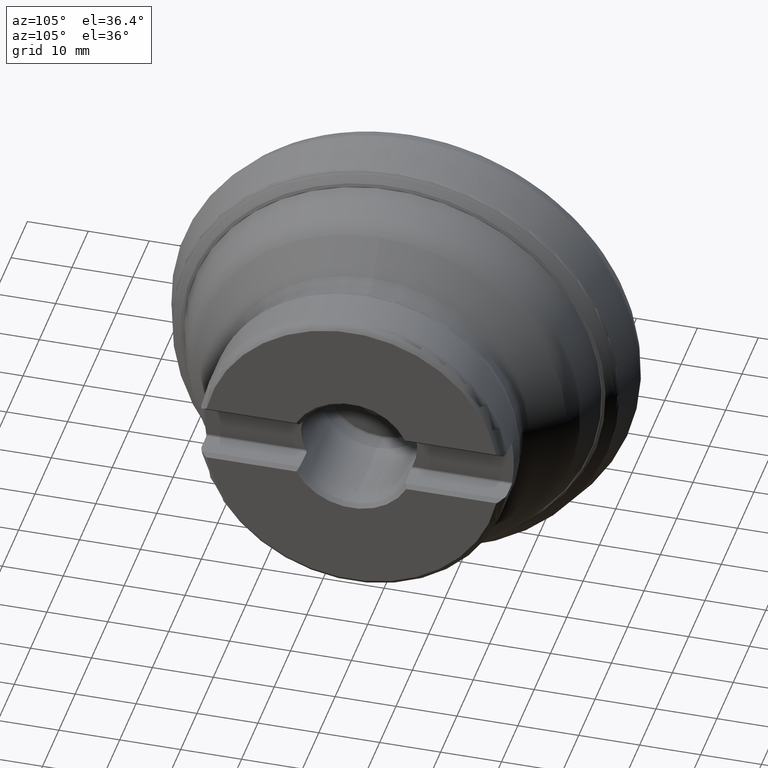
[diagram: clean part render]
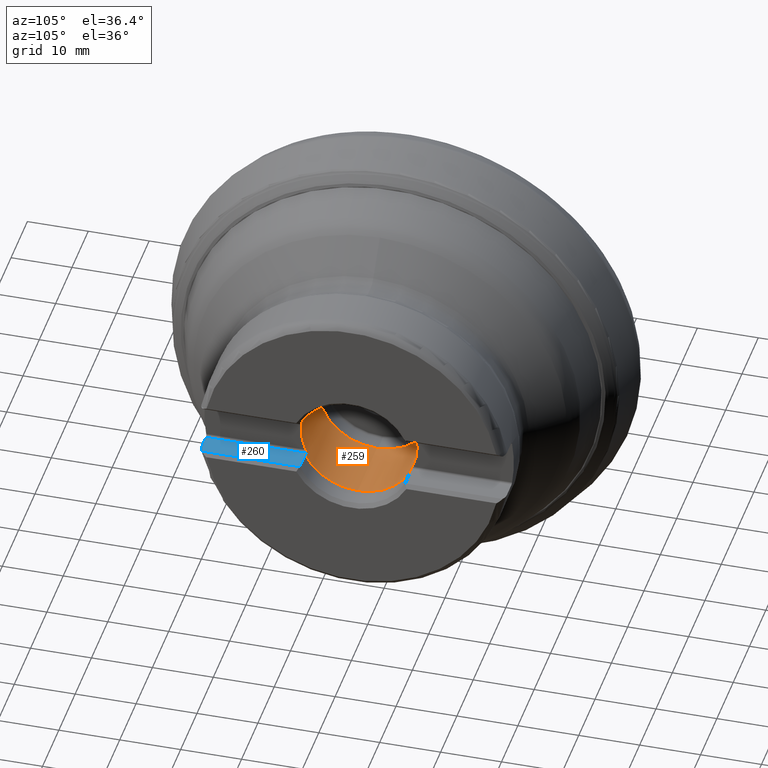
[diagram: same view with the hole feature highlighted: cylindrical wall and planar end face, labeled with their STEP entity ids]
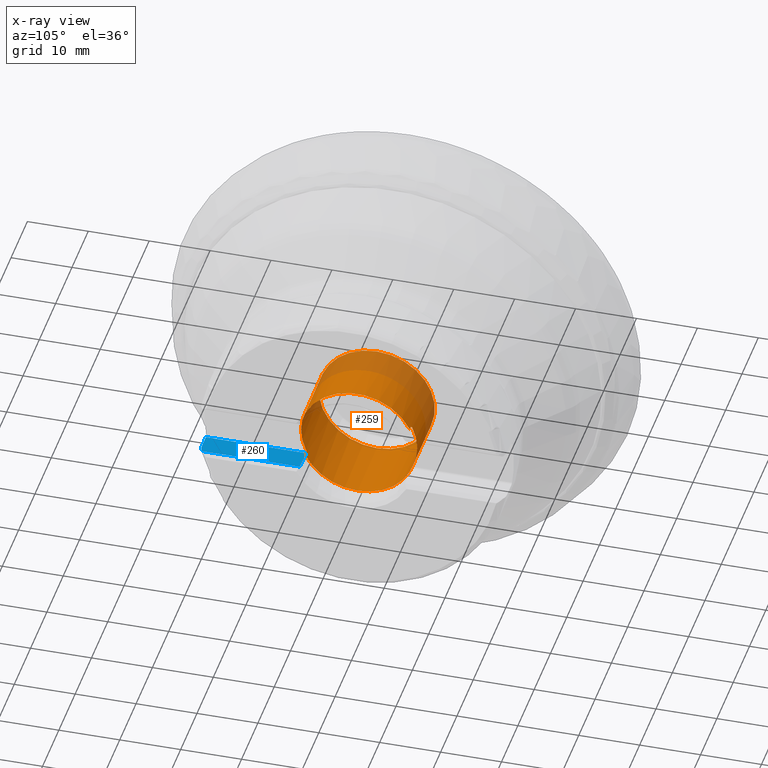
[diagram: x-ray of the same camera — body ghosted, the hole faces saturated]
A machine part, auxiliary view. The highlighted faces form one hole feature of diameter 19.05 mm: the cylindrical wall (entity #259, orange) and its adjacent planar end face (entity #260, blue) — they share a circular edge in the B-rep.
The next image is the same camera in x-ray (body ghosted, the hole faces saturated) — the bore reads through the body.
Wall:
#105=CYLINDRICAL_SURFACE('',#1125,9.525);
#182=LINE('',#1766,#206);
#183=LINE('',#1807,#207);
#184=LINE('',#1808,#208);
#185=LINE('',#1849,#209);
#206=VECTOR('',#1313,1.);
#207=VECTOR('',#1316,1.);
#208=VECTOR('',#1317,1.);
#209=VECTOR('',#1320,1.);
#259=ADVANCED_FACE('',(#443,#444),#105,.F.);
#373=B_SPLINE_CURVE_WITH_KNOTS('',3,(#1768,#1769,#1770,#1771,#1772,#1773,
#1774,#1775,#1776,#1777,#1778,#1779,#1780,#1781,#1782,#1783,#1784,#1785,
#1786),.UNSPECIFIED.,.F.,.F.,(4,3,3,3,3,3,4),(0.,0.0386594743957455,0.269044895788534,
0.480081106362778,0.673449817538788,0.857853975453466,1.),.UNSPECIFIED.);
#374=B_SPLINE_CURVE_WITH_KNOTS('',3,(#1790,#1791,#1792,#1793,#1794,#1795,
#1796,#1797,#1798,#1799,#1800,#1801,#1802,#1803,#1804,#1805),
 .UNSPECIFIED.,.F.,.F.,(4,3,3,3,3,4),(0.,0.108413031410189,0.323007237368325,
0.558707803919922,0.801825649246487,1.),.UNSPECIFIED.);
#375=B_SPLINE_CURVE_WITH_KNOTS('',3,(#1810,#1811,#1812,#1813,#1814,#1815,
#1816,#1817,#1818,#1819,#1820,#1821,#1822,#1823,#1824,#1825),
 .UNSPECIFIED.,.F.,.F.,(4,3,3,3,3,4),(0.,0.206937369334465,0.423509286042871,
0.620977371917134,0.81021090692837,1.),.UNSPECIFIED.);
#376=B_SPLINE_CURVE_WITH_KNOTS('',3,(#1829,#1830,#1831,#1832,#1833,#1834,
#1835,#1836,#1837,#1838,#1839,#1840,#1841,#1842,#1843,#1844,#1845,#1846,
#1847),.UNSPECIFIED.,.F.,.F.,(4,3,3,3,3,3,4),(0.,0.0466914832213066,0.253760914020809,
0.483837973279794,0.726357143929705,0.965681344552278,1.),.UNSPECIFIED.);
#443=FACE_BOUND('',#541,.T.);
#444=FACE_BOUND('',#542,.T.);
#541=EDGE_LOOP('',(#683));
#542=EDGE_LOOP('',(#684,#685,#686,#687,#688,#689,#690,#691,#692,#693,#694,
#695));
#683=ORIENTED_EDGE('',*,*,#953,.F.);
#684=ORIENTED_EDGE('',*,*,#957,.T.);
#685=ORIENTED_EDGE('',*,*,#961,.T.);
#686=ORIENTED_EDGE('',*,*,#962,.F.);
#687=ORIENTED_EDGE('',*,*,#963,.T.);
#688=ORIENTED_EDGE('',*,*,#964,.F.);
#689=ORIENTED_EDGE('',*,*,#965,.T.);
#690=ORIENTED_EDGE('',*,*,#960,.T.);
#691=ORIENTED_EDGE('',*,*,#966,.T.);
#692=ORIENTED_EDGE('',*,*,#967,.F.);
#693=ORIENTED_EDGE('',*,*,#968,.T.);
#694=ORIENTED_EDGE('',*,*,#969,.F.);
#695=ORIENTED_EDGE('',*,*,#970,.T.);
#860=VERTEX_POINT('',#1723);
#862=VERTEX_POINT('',#1737);
#863=VERTEX_POINT('',#1745);
#864=VERTEX_POINT('',#1755);
#865=VERTEX_POINT('',#1763);
#866=VERTEX_POINT('',#1767);
#867=VERTEX_POINT('',#1787);
#868=VERTEX_POINT('',#1789);
#869=VERTEX_POINT('',#1806);
#870=VERTEX_POINT('',#1809);
#871=VERTEX_POINT('',#1826);
#872=VERTEX_POINT('',#1828);
#873=VERTEX_POINT('',#1848);
#953=EDGE_CURVE('',#860,#860,#1044,.T.);
#957=EDGE_CURVE('',#862,#863,#1046,.T.);
#960=EDGE_CURVE('',#864,#865,#1047,.T.);
#961=EDGE_CURVE('',#863,#866,#182,.T.);
#962=EDGE_CURVE('',#867,#866,#373,.T.);
#963=EDGE_CURVE('',#867,#868,#1048,.T.);
#964=EDGE_CURVE('',#869,#868,#374,.T.);
#965=EDGE_CURVE('',#869,#864,#183,.T.);
#966=EDGE_CURVE('',#865,#870,#184,.T.);
#967=EDGE_CURVE('',#871,#870,#375,.T.);
#968=EDGE_CURVE('',#871,#872,#1049,.T.);
#969=EDGE_CURVE('',#873,#872,#376,.T.);
#970=EDGE_CURVE('',#873,#862,#185,.T.);
#1044=CIRCLE('',#1113,9.525);
#1046=CIRCLE('',#1119,9.525);
#1047=CIRCLE('',#1121,9.525);
#1048=CIRCLE('',#1123,9.525);
#1049=CIRCLE('',#1124,9.525);
#1113=AXIS2_PLACEMENT_3D('',#1722,#1293,#1294);
#1119=AXIS2_PLACEMENT_3D('',#1746,#1305,#1306);
#1121=AXIS2_PLACEMENT_3D('',#1764,#1309,#1310);
#1123=AXIS2_PLACEMENT_3D('',#1788,#1314,#1315);
#1124=AXIS2_PLACEMENT_3D('',#1827,#1318,#1319);
#1125=AXIS2_PLACEMENT_3D('',#1850,#1321,#1322);
#1293=DIRECTION('',(1.,1.47104550762833E-15,0.));
#1294=DIRECTION('',(0.,0.,-1.));
#1305=DIRECTION('',(1.,1.47104550762833E-15,0.));
#1306=DIRECTION('',(0.,0.,-1.));
#1309=DIRECTION('',(1.,1.47104550762833E-15,0.));
#1310=DIRECTION('',(0.,0.,-1.));
#1313=DIRECTION('',(-1.,-1.47104550762833E-15,0.));
#1314=DIRECTION('',(1.,1.47104550762833E-15,0.));
#1315=DIRECTION('',(0.,0.,1.));
#1316=DIRECTION('',(1.,1.47104550762833E-15,0.));
#1317=DIRECTION('',(-1.,-1.47104550762833E-15,0.));
#1318=DIRECTION('',(1.,1.47104550762833E-15,0.));
#1319=DIRECTION('',(0.,0.,1.));
#1320=DIRECTION('',(1.,1.47104550762833E-15,0.));
#1321=DIRECTION('',(-1.,-1.47104550762833E-15,0.));
#1322=DIRECTION('',(0.,0.,-1.));
#1722=CARTESIAN_POINT('',(24.45,-2.28747576436206E-14,0.));
#1723=CARTESIAN_POINT('',(24.45,-2.28747576436206E-14,-9.525));
#1737=CARTESIAN_POINT('',(36.2,-8.56124990874581,-4.175));
#1745=CARTESIAN_POINT('',(36.2,8.5612499087458,-4.175));
#1746=CARTESIAN_POINT('',(36.2,-5.58997292898766E-15,0.));
#1755=CARTESIAN_POINT('',(36.2,8.5612499087458,4.175));
#1763=CARTESIAN_POINT('',(36.2,-8.56124990874581,4.175));
#1764=CARTESIAN_POINT('',(36.2,-5.58997292898766E-15,0.));
#1766=CARTESIAN_POINT('',(40.2,8.5612499087458,-4.175));
#1767=CARTESIAN_POINT('',(35.65,8.5612499087458,-4.175));
#1768=CARTESIAN_POINT('',(35.25,8.74499857061165,-3.775));
#1769=CARTESIAN_POINT('',(35.25,8.74161773161384,-3.78283190257042));
#1770=CARTESIAN_POINT('',(35.2502301556307,8.73822513158494,-3.79066209357218));
#1771=CARTESIAN_POINT('',(35.250689353177,8.7348282023674,-3.79847354540307));
#1772=CARTESIAN_POINT('',(35.2534023956065,8.71475838019074,-3.84462536051241));
#1773=CARTESIAN_POINT('',(35.2643109342927,8.69422372993681,-3.89079669083708));
#1774=CARTESIAN_POINT('',(35.2827498272641,8.67485314955539,-3.93351596331436));
#1775=CARTESIAN_POINT('',(35.2996629652033,8.65708541813785,-3.97270036278937));
#1776=CARTESIAN_POINT('',(35.3233156854881,8.63988011341599,-4.00991051466906));
#1777=CARTESIAN_POINT('',(35.3524953671563,8.62466260945896,-4.04237799729324));
#1778=CARTESIAN_POINT('',(35.3792506855096,8.61070943589313,-4.07214795310071));
#1779=CARTESIAN_POINT('',(35.4112783314609,8.59812510101882,-4.098586147957));
#1780=CARTESIAN_POINT('',(35.4467483665104,8.58808726251802,-4.11951237058169));
#1781=CARTESIAN_POINT('',(35.4805643378047,8.57851751559993,-4.13946274679605));
#1782=CARTESIAN_POINT('',(35.5183282752096,8.57106009559079,-4.15483582076001));
#1783=CARTESIAN_POINT('',(35.5573956245222,8.56654084343706,-4.16413292027579));
#1784=CARTESIAN_POINT('',(35.5874898726738,8.56305958611689,-4.1712946352332));
#1785=CARTESIAN_POINT('',(35.6188700612677,8.5612499087458,-4.175));
#1786=CARTESIAN_POINT('',(35.65,8.5612499087458,-4.175));
#1787=CARTESIAN_POINT('',(35.25,8.74499857061165,-3.775));
#1788=CARTESIAN_POINT('',(35.25,-6.98746616123458E-15,0.));
#1789=CARTESIAN_POINT('',(35.25,8.74499857061165,3.775));
#1790=CARTESIAN_POINT('',(35.65,8.5612499087458,4.175));
#1791=CARTESIAN_POINT('',(35.6259936956598,8.5612499087458,4.175));
#1792=CARTESIAN_POINT('',(35.6018703742219,8.56231721657189,4.17281338993157));
#1793=CARTESIAN_POINT('',(35.5783417054865,8.56440253709577,4.16852901904106));
#1794=CARTESIAN_POINT('',(35.5323799205614,8.56847608050346,4.16015976808072));
#1795=CARTESIAN_POINT('',(35.4875736915034,8.57664126790243,4.14336818386916));
#1796=CARTESIAN_POINT('',(35.4482191694663,8.58767300449022,4.1203758770226));
#1797=CARTESIAN_POINT('',(35.4050301642006,8.59977961142934,4.09514332914589));
#1798=CARTESIAN_POINT('',(35.3668454300065,8.61571094335503,4.06163691019243));
#1799=CARTESIAN_POINT('',(35.3367773091044,8.63335500147312,4.02378011558024));
#1800=CARTESIAN_POINT('',(35.305730447902,8.65157338715885,3.98469105338978));
#1801=CARTESIAN_POINT('',(35.2822348974642,8.67218409589315,3.93972891098112));
#1802=CARTESIAN_POINT('',(35.2678166150486,8.69308833455976,3.89305024467202));
#1803=CARTESIAN_POINT('',(35.2560422841187,8.71015925998665,3.85493127539035));
#1804=CARTESIAN_POINT('',(35.25,8.72780011334711,3.81484118786626));
#1805=CARTESIAN_POINT('',(35.25,8.74499857061165,3.775));
#1806=CARTESIAN_POINT('',(35.65,8.5612499087458,4.175));
#1807=CARTESIAN_POINT('',(40.2,8.5612499087458,4.175));
#1808=CARTESIAN_POINT('',(40.2,-8.5612499087458,4.175));
#1809=CARTESIAN_POINT('',(35.65,-8.56124990874581,4.175));
#1810=CARTESIAN_POINT('',(35.25,-8.74499857061167,3.775));
#1811=CARTESIAN_POINT('',(35.25,-8.7270561519053,3.81656461614319));
#1812=CARTESIAN_POINT('',(35.2565850754852,-8.70862364477201,3.85841738595405));
#1813=CARTESIAN_POINT('',(35.2693927758912,-8.69085331574531,3.89803715274737));
#1814=CARTESIAN_POINT('',(35.282813946652,-8.67223181361915,3.93955464915791));
#1815=CARTESIAN_POINT('',(35.3034034130693,-8.65391245161984,3.97956810047001));
#1816=CARTESIAN_POINT('',(35.3300980585041,-8.63738100061534,4.01513068905724));
#1817=CARTESIAN_POINT('',(35.3544605109498,-8.62229382929698,4.04758633172248));
#1818=CARTESIAN_POINT('',(35.3844780066998,-8.60836386357537,4.07705931876258));
#1819=CARTESIAN_POINT('',(35.418513637287,-8.59684172875103,4.10121168568572));
#1820=CARTESIAN_POINT('',(35.4511144040829,-8.585805340592,4.12434584444943));
#1821=CARTESIAN_POINT('',(35.4882060452832,-8.57673929736884,4.14311039443198));
#1822=CARTESIAN_POINT('',(35.5272455852362,-8.57063561903608,4.15569850755683));
#1823=CARTESIAN_POINT('',(35.5663494835589,-8.56452187852569,4.16830737273043));
#1824=CARTESIAN_POINT('',(35.6084611486916,-8.56124990874581,4.175));
#1825=CARTESIAN_POINT('',(35.65,-8.56124990874581,4.175));
#1826=CARTESIAN_POINT('',(35.25,-8.74499857061167,3.775));
#1827=CARTESIAN_POINT('',(35.25,-6.98746616123458E-15,0.));
#1828=CARTESIAN_POINT('',(35.25,-8.74499857061167,-3.775));
#1829=CARTESIAN_POINT('',(35.65,-8.56124990874581,-4.175));
#1830=CARTESIAN_POINT('',(35.6396736248158,-8.56124990874581,-4.175));
#1831=CARTESIAN_POINT('',(35.6293377166004,-8.56144537883929,-4.17459923994738));
#1832=CARTESIAN_POINT('',(35.6190496163484,-8.56183461223262,-4.1738007945727));
#1833=CARTESIAN_POINT('',(35.5739238413632,-8.56354187189125,-4.17029864495972));
#1834=CARTESIAN_POINT('',(35.5288623706117,-8.56915472133486,-4.15879922795189));
#1835=CARTESIAN_POINT('',(35.4882070048302,-8.57783474006713,-4.14081829740181));
#1836=CARTESIAN_POINT('',(35.443103708057,-8.58746440280295,-4.12087014956778));
#1837=CARTESIAN_POINT('',(35.4018346841029,-8.60116107532836,-4.09231403370194));
#1838=CARTESIAN_POINT('',(35.3680120258875,-8.61699604888935,-4.0586948756251));
#1839=CARTESIAN_POINT('',(35.3323387721724,-8.63369742776436,-4.02323625649085));
#1840=CARTESIAN_POINT('',(35.3036524385155,-8.65330146765015,-3.98100721019211));
#1841=CARTESIAN_POINT('',(35.2839259811476,-8.67362944739408,-3.93621356246055));
#1842=CARTESIAN_POINT('',(35.2644307363278,-8.69371916418444,-3.89194493821605));
#1843=CARTESIAN_POINT('',(35.2530544874384,-8.71510374127139,-3.84386899581249));
#1844=CARTESIAN_POINT('',(35.2505456445106,-8.73595305437245,-3.79588582965832));
#1845=CARTESIAN_POINT('',(35.2501821348727,-8.73897393948733,-3.78893348395285));
#1846=CARTESIAN_POINT('',(35.25,-8.74199085471791,-3.78196754203754));
#1847=CARTESIAN_POINT('',(35.25,-8.74499857061167,-3.775));
#1848=CARTESIAN_POINT('',(35.65,-8.56124990874581,-4.175));
#1849=CARTESIAN_POINT('',(40.2,-8.5612499087458,-4.175));
#1850=CARTESIAN_POINT('',(40.2,2.94209101525659E-16,0.));
End face:
#138=PLANE('',#1126);
#158=FACE_OUTER_BOUND('',#543,.T.);
#178=LINE('',#1664,#202);
#185=LINE('',#1849,#209);
#186=LINE('',#1862,#210);
#187=LINE('',#1864,#211);
#202=VECTOR('',#1261,1.);
#209=VECTOR('',#1320,1.);
#210=VECTOR('',#1323,1.);
#211=VECTOR('',#1324,1.);
#260=ADVANCED_FACE('',(#158),#138,.T.);
#365=B_SPLINE_CURVE_WITH_KNOTS('',3,(#1679,#1680,#1681,#1682),
 .UNSPECIFIED.,.F.,.F.,(4,4),(0.,1.),.UNSPECIFIED.);
#369=B_SPLINE_CURVE_WITH_KNOTS('',3,(#1730,#1731,#1732,#1733,#1734,#1735,
#1736),.UNSPECIFIED.,.F.,.F.,(4,3,4),(0.,0.614920846963059,1.),
 .UNSPECIFIED.);
#377=B_SPLINE_CURVE_WITH_KNOTS('',3,(#1851,#1852,#1853,#1854,#1855,#1856,
#1857,#1858,#1859,#1860),.UNSPECIFIED.,.F.,.F.,(4,3,3,4),(0.,0.183648982234441,
0.702026817141181,1.),.UNSPECIFIED.);
#543=EDGE_LOOP('',(#696,#697,#698,#699,#700,#701,#702));
#696=ORIENTED_EDGE('',*,*,#971,.F.);
#697=ORIENTED_EDGE('',*,*,#936,.T.);
#698=ORIENTED_EDGE('',*,*,#940,.T.);
#699=ORIENTED_EDGE('',*,*,#955,.F.);
#700=ORIENTED_EDGE('',*,*,#970,.F.);
#701=ORIENTED_EDGE('',*,*,#972,.T.);
#702=ORIENTED_EDGE('',*,*,#973,.T.);
#845=VERTEX_POINT('',#1663);
#846=VERTEX_POINT('',#1665);
#848=VERTEX_POINT('',#1677);
#862=VERTEX_POINT('',#1737);
#873=VERTEX_POINT('',#1848);
#874=VERTEX_POINT('',#1861);
#875=VERTEX_POINT('',#1863);
#936=EDGE_CURVE('',#846,#845,#178,.T.);
#940=EDGE_CURVE('',#845,#848,#365,.T.);
#955=EDGE_CURVE('',#862,#848,#369,.T.);
#970=EDGE_CURVE('',#873,#862,#185,.T.);
#971=EDGE_CURVE('',#846,#874,#377,.T.);
#972=EDGE_CURVE('',#873,#875,#186,.T.);
#973=EDGE_CURVE('',#875,#874,#187,.T.);
#1126=AXIS2_PLACEMENT_3D('',#1865,#1325,#1326);
#1261=DIRECTION('',(0.,1.,2.72559982503621E-31));
#1320=DIRECTION('',(1.,1.47104550762833E-15,0.));
#1323=DIRECTION('',(1.47104550762833E-15,-1.,0.));
#1324=DIRECTION('',(1.,0.,0.));
#1325=DIRECTION('',(-1.85283175190855E-16,-2.72559982503621E-31,1.));
#1326=DIRECTION('',(-1.,-1.47104550762833E-15,-1.85615411929518E-16));
#1663=CARTESIAN_POINT('',(39.4,-8.67182220795196,-4.175));
#1664=CARTESIAN_POINT('',(39.4,-47.,-4.175));
#1665=CARTESIAN_POINT('',(39.4,-24.6489223902385,-4.175));
#1677=CARTESIAN_POINT('',(39.3838659624157,-8.65391220282649,-4.175));
#1679=CARTESIAN_POINT('',(39.4,-8.67182220795196,-4.175));
#1680=CARTESIAN_POINT('',(39.3946214095775,-8.66585272688421,-4.175));
#1681=CARTESIAN_POINT('',(39.3892433959274,-8.65988272608487,-4.175));
#1682=CARTESIAN_POINT('',(39.3838659624157,-8.65391220282649,-4.175));
#1730=CARTESIAN_POINT('',(36.2,-8.56124990874581,-4.175));
#1731=CARTESIAN_POINT('',(36.8526079482187,-8.58026279418307,-4.175));
#1732=CARTESIAN_POINT('',(37.5052162507395,-8.59926352210968,-4.175));
#1733=CARTESIAN_POINT('',(38.15782489992,-8.61825233211779,-4.175));
#1734=CARTESIAN_POINT('',(38.5665051186759,-8.63014361035594,-4.175));
#1735=CARTESIAN_POINT('',(38.9751854734517,-8.64203021474977,-4.175));
#1736=CARTESIAN_POINT('',(39.3838659624157,-8.65391220282649,-4.175));
#1737=CARTESIAN_POINT('',(36.2,-8.56124990874581,-4.175));
#1848=CARTESIAN_POINT('',(35.65,-8.56124990874581,-4.175));
#1849=CARTESIAN_POINT('',(40.2,-8.5612499087458,-4.175));
#1851=CARTESIAN_POINT('',(39.4,-24.6489223902385,-4.175));
#1852=CARTESIAN_POINT('',(39.3369344574729,-24.6968952347979,-4.175));
#1853=CARTESIAN_POINT('',(39.2708975089701,-24.7411941359473,-4.175));
#1854=CARTESIAN_POINT('',(39.2025776858403,-24.781332125893,-4.175));
#1855=CARTESIAN_POINT('',(39.0115471926921,-24.8935628030533,-4.175));
#1856=CARTESIAN_POINT('',(38.7986040046143,-24.9745605319298,-4.175));
#1857=CARTESIAN_POINT('',(38.5812170275126,-25.0173539472516,-4.175));
#1858=CARTESIAN_POINT('',(38.4559460869435,-25.0420139865004,-4.175));
#1859=CARTESIAN_POINT('',(38.3276750801325,-25.0545280338704,-4.175));
#1860=CARTESIAN_POINT('',(38.2,-25.0545280338704,-4.175));
#1861=CARTESIAN_POINT('',(38.2,-25.0545280338704,-4.175));
#1862=CARTESIAN_POINT('',(35.6500000000001,-47.,-4.175));
#1863=CARTESIAN_POINT('',(35.65,-25.0545280338704,-4.175));
#1864=CARTESIAN_POINT('',(5.,-25.0545280338704,-4.175));
#1865=CARTESIAN_POINT('',(35.2500000000001,-47.,-4.175));